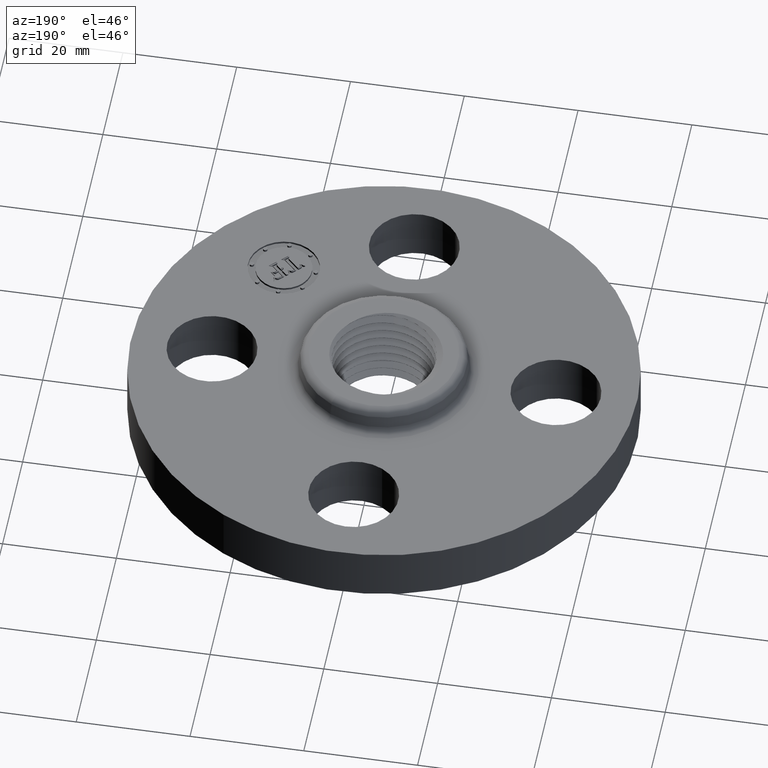
[diagram: clean part render]
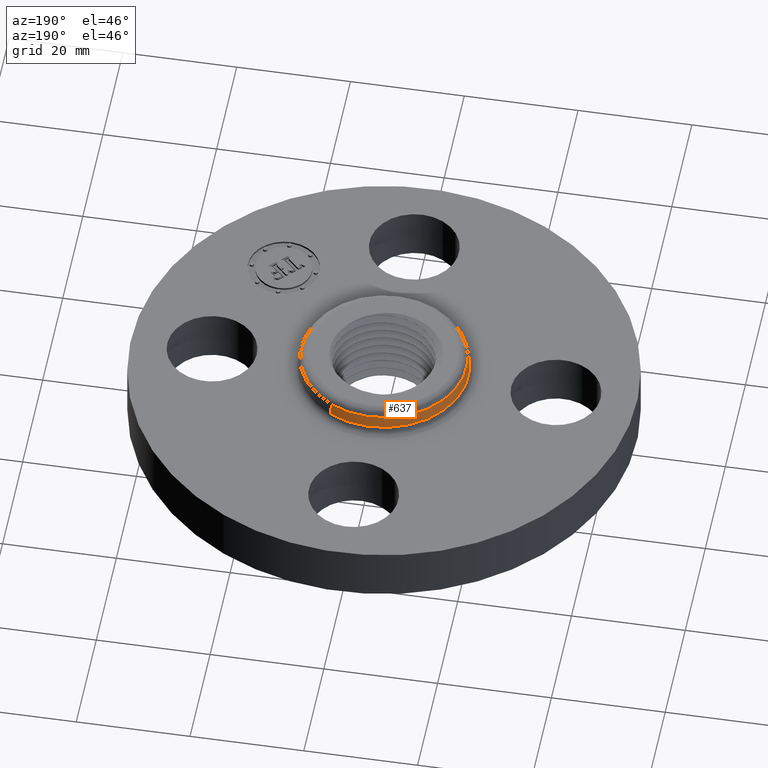
[diagram: same view with one face highlighted and labeled with its STEP entity id]
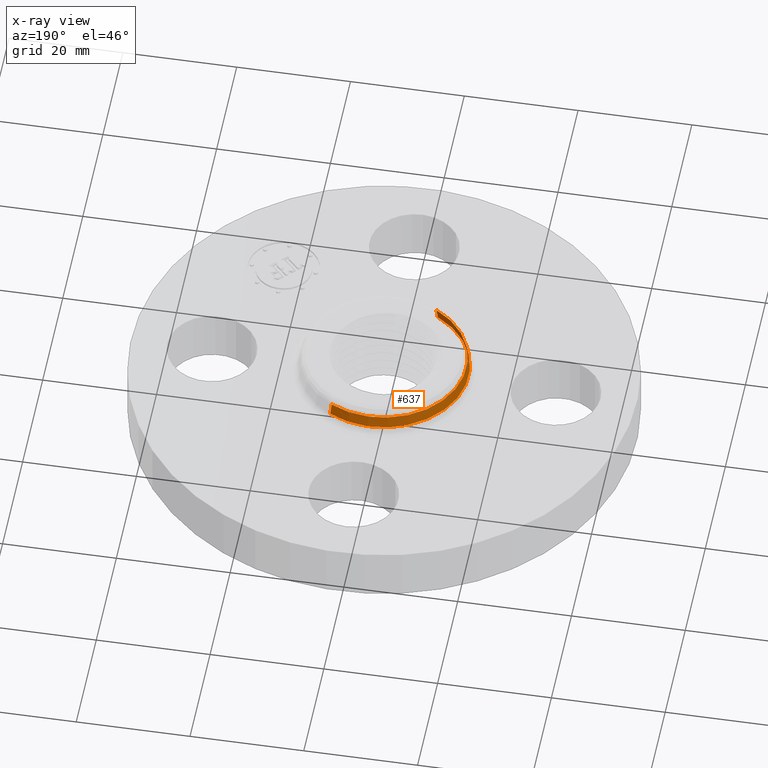
[diagram: x-ray of the same camera — body ghosted, the highlighted face saturated]
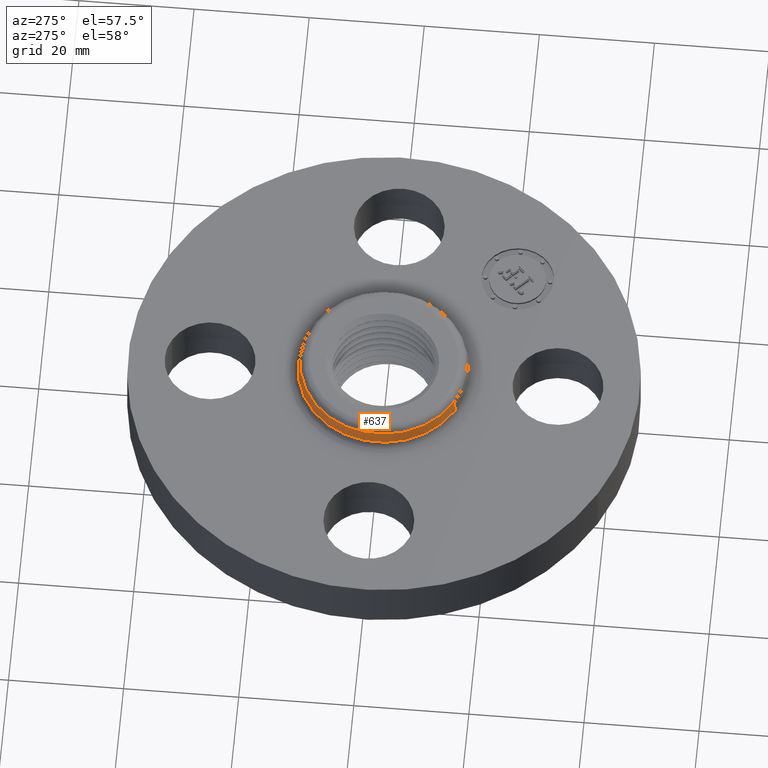
[diagram: same view with one face highlighted and labeled with its STEP entity id]
A machine part, auxiliary view. The second image highlights one B-rep face of the part: STEP entity #637.
The next image is the same camera in x-ray: the body ghosted, the highlighted face saturated — about 0% of this face is hidden behind the body in this view.
A second angle (auxiliary view) of the same face is appended — the face is thin or edge-on in the first view.
In plain terms, the highlighted conical surface has half-angle 10 deg.
Its self-contained STEP definition (entity closure, byte-faithful):
#571=AXIS2_PLACEMENT_3D('Circle Axis2P3D',#569,#570,$) ;
#610=AXIS2_PLACEMENT_3D('Cone Axis2P3D',#607,#608,#609) ;
#614=AXIS2_PLACEMENT_3D('Circle Axis2P3D',#612,#613,$) ;
#569=CARTESIAN_POINT('Axis2P3D Location',(0.,0.,0.510418890662)) ;
#573=CARTESIAN_POINT('Vertex',(-0.274233148773,-0.501980411715,0.510418890662)) ;
#575=CARTESIAN_POINT('Vertex',(0.274233148773,0.501980411715,0.510418890662)) ;
#607=CARTESIAN_POINT('Axis2P3D Location',(0.,0.,0.510418890662)) ;
#612=CARTESIAN_POINT('Axis2P3D Location',(0.,0.,0.429581109342)) ;
#616=CARTESIAN_POINT('Vertex',(-0.281066823783,-0.514489369916,0.429581109342)) ;
#618=CARTESIAN_POINT('Vertex',(0.281066823783,0.514489369916,0.429581109342)) ;
#621=CARTESIAN_POINT('Line Origine',(-0.277649986278,-0.508234890815,0.470000000002)) ;
#626=CARTESIAN_POINT('Line Origine',(0.277649986278,0.508234890815,0.470000000002)) ;
#570=DIRECTION('Axis2P3D Direction',(0.,0.,-0.0393700787402)) ;
#608=DIRECTION('Axis2P3D Direction',(0.,0.,-0.0393700787402)) ;
#609=DIRECTION('Axis2P3D XDirection',(0.0188750212049,0.0345504945626,0.)) ;
#613=DIRECTION('Axis2P3D Direction',(0.,0.,-0.0393700787402)) ;
#622=DIRECTION('Vector Direction',(-0.00327761303565,-0.00599963041829,-0.03877195878)) ;
#627=DIRECTION('Vector Direction',(0.00327761303565,0.00599963041829,-0.03877195878)) ;
#623=VECTOR('Line Direction',#622,0.0393700787402) ;
#628=VECTOR('Line Direction',#627,0.0393700787402) ;
#632=ORIENTED_EDGE('',*,*,#620,.F.) ;
#633=ORIENTED_EDGE('',*,*,#625,.T.) ;
#634=ORIENTED_EDGE('',*,*,#577,.T.) ;
#635=ORIENTED_EDGE('',*,*,#630,.F.) ;
#637=ADVANCED_FACE('PartBody',(#636),#611,.T.) ;
#572=CIRCLE('generated circle',#571,0.572003630785) ;
#615=CIRCLE('generated circle',#614,0.586257512692) ;
#611=CONICAL_SURFACE('Cone',#610,0.572003630785,0.174532925199) ;
#577=EDGE_CURVE('',#574,#576,#572,.T.) ;
#620=EDGE_CURVE('',#617,#619,#615,.T.) ;
#625=EDGE_CURVE('',#617,#574,#624,.F.) ;
#630=EDGE_CURVE('',#619,#576,#629,.F.) ;
#631=EDGE_LOOP('',(#632,#633,#634,#635)) ;
#636=FACE_OUTER_BOUND('',#631,.T.) ;
#624=LINE('Line',#621,#623) ;
#629=LINE('Line',#626,#628) ;
#574=VERTEX_POINT('',#573) ;
#576=VERTEX_POINT('',#575) ;
#617=VERTEX_POINT('',#616) ;
#619=VERTEX_POINT('',#618) ;